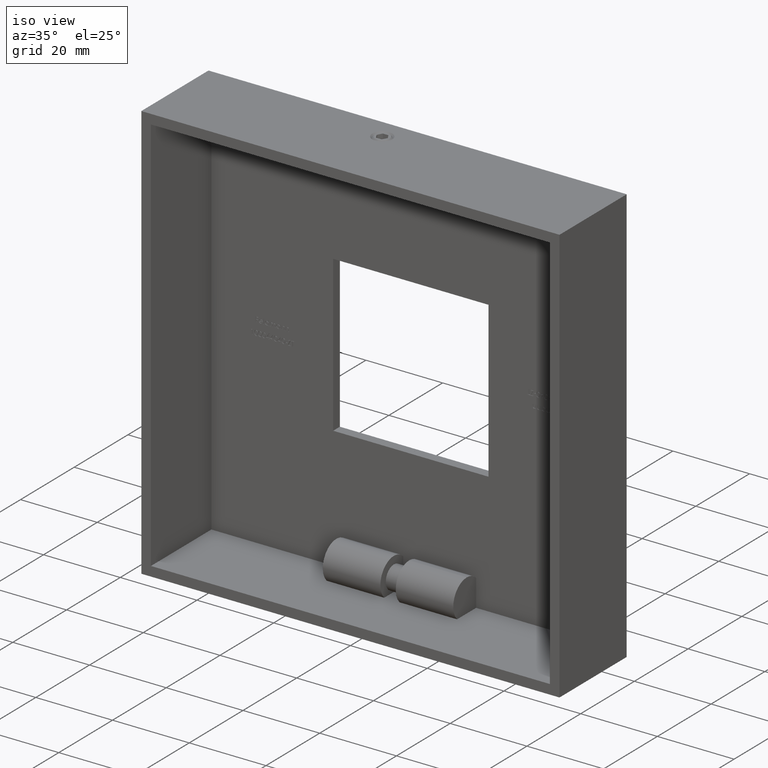
[diagram: clean part render]
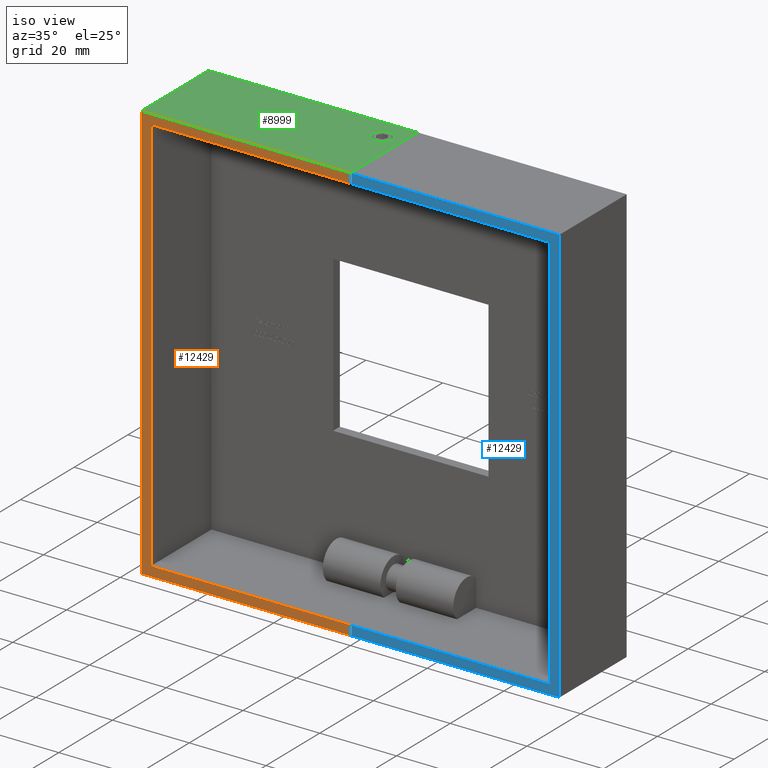
[diagram: same view with three faces highlighted in distinct colors, each labeled with its STEP entity id]
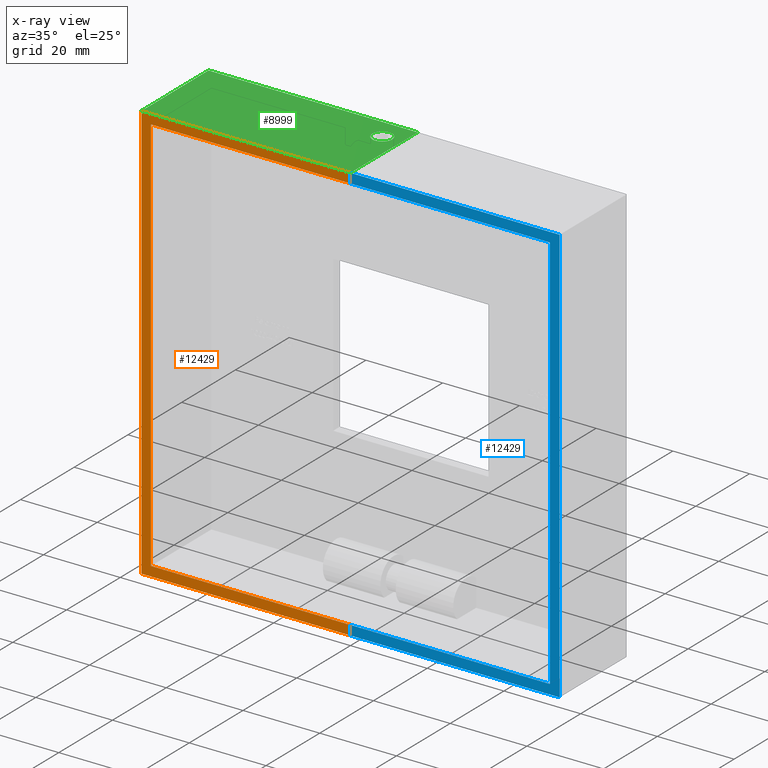
[diagram: x-ray of the same camera — body ghosted, the three highlighted faces saturated]
A machine part, iso view with three faces highlighted in distinct colors.
The next image is the same camera in x-ray (body ghosted, the three faces saturated) — at least one of them is partly hidden behind the body in this view.
Their STEP definitions:

[orange] entity #12429 — the highlighted planar face has unit normal (0, 1, 0).
#82 = VERTEX_POINT ( 'NONE', #2763 ) ;
#467 = EDGE_CURVE ( 'NONE', #2636, #3929, #2175, .T. ) ;
#468 = CARTESIAN_POINT ( 'NONE',  ( -27.24999999999999300, 0.0000000000000000000, 54.49999999999999300 ) ) ;
#1263 = VERTEX_POINT ( 'NONE', #8485 ) ;
#1644 = ORIENTED_EDGE ( 'NONE', *, *, #6239, .F. ) ;
#1744 = LINE ( 'NONE', #5972, #12826 ) ;
#1829 = DIRECTION ( 'NONE',  ( -1.000000000000000000, 0.0000000000000000000, -2.668805347656625700E-016 ) ) ;
#1861 = VECTOR ( 'NONE', #15420, 1000.000000000000000 ) ;
#2093 = ORIENTED_EDGE ( 'NONE', *, *, #15393, .F. ) ;
#2175 = LINE ( 'NONE', #9534, #4462 ) ;
#2636 = VERTEX_POINT ( 'NONE', #3304 ) ;
#2763 = CARTESIAN_POINT ( 'NONE',  ( -24.74999999999999300, 0.0000000000000000000, -52.00000000000000700 ) ) ;
#3304 = CARTESIAN_POINT ( 'NONE',  ( -27.25000000000000700, 0.0000000000000000000, -54.50000000000000000 ) ) ;
#3490 = ORIENTED_EDGE ( 'NONE', *, *, #7276, .F. ) ;
#3929 = VERTEX_POINT ( 'NONE', #468 ) ;
#4234 = LINE ( 'NONE', #10506, #10432 ) ;
#4247 = ORIENTED_EDGE ( 'NONE', *, *, #11982, .F. ) ;
#4462 = VECTOR ( 'NONE', #7160, 1000.000000000000000 ) ;
#5456 = LINE ( 'NONE', #14364, #1861 ) ;
#5972 = CARTESIAN_POINT ( 'NONE',  ( 0.0000000000000000000, 0.0000000000000000000, -52.00000000000000700 ) ) ;
#5986 = LINE ( 'NONE', #8199, #8457 ) ;
#6097 = VERTEX_POINT ( 'NONE', #11626 ) ;
#6239 = EDGE_CURVE ( 'NONE', #1263, #13776, #10716, .T. ) ;
#6682 = ORIENTED_EDGE ( 'NONE', *, *, #15375, .F. ) ;
#6794 = CARTESIAN_POINT ( 'NONE',  ( 27.24999999999999300, 0.0000000000000000000, -54.50000000000000000 ) ) ;
#6818 = CARTESIAN_POINT ( 'NONE',  ( 27.24999999999999300, 0.0000000000000000000, -54.50000000000000000 ) ) ;
#7125 = EDGE_LOOP ( 'NONE', ( #4247, #3490, #6682, #1644, #9738, #2093, #9950, #7428 ) ) ;
#7129 = DIRECTION ( 'NONE',  ( 1.668003342285391600E-016, 0.0000000000000000000, -1.000000000000000000 ) ) ;
#7160 = DIRECTION ( 'NONE',  ( 1.273191542001326800E-016, 0.0000000000000000000, 1.000000000000000000 ) ) ;
#7276 = EDGE_CURVE ( 'NONE', #82, #13096, #1744, .T. ) ;
#7428 = ORIENTED_EDGE ( 'NONE', *, *, #9898, .F. ) ;
#8054 = DIRECTION ( 'NONE',  ( -1.273191542001326800E-016, -0.0000000000000000000, -1.000000000000000000 ) ) ;
#8119 = CARTESIAN_POINT ( 'NONE',  ( -27.25000000000000700, 0.0000000000000000000, -54.50000000000000000 ) ) ;
#8199 = CARTESIAN_POINT ( 'NONE',  ( -24.75000000000000400, -0.0000000000000000000, -4.128308272156344700E-015 ) ) ;
#8457 = VECTOR ( 'NONE', #7129, 1000.000000000000000 ) ;
#8485 = CARTESIAN_POINT ( 'NONE',  ( 27.25000000000000700, 0.0000000000000000000, 51.99999999999999300 ) ) ;
#8556 = DIRECTION ( 'NONE',  ( 0.0000000000000000000, -0.0000000000000000000, 1.000000000000000000 ) ) ;
#9344 = PLANE ( 'NONE',  #13991 ) ;
#9433 = DIRECTION ( 'NONE',  ( 0.0000000000000000000, 1.000000000000000000, 0.0000000000000000000 ) ) ;
#9534 = CARTESIAN_POINT ( 'NONE',  ( -27.25000000000000700, 0.0000000000000000000, -54.50000000000000000 ) ) ;
#9738 = ORIENTED_EDGE ( 'NONE', *, *, #11993, .F. ) ;
#9837 = CARTESIAN_POINT ( 'NONE',  ( -24.75000000000001100, 0.0000000000000000000, 51.99999999999998600 ) ) ;
#9898 = EDGE_CURVE ( 'NONE', #12760, #2636, #11400, .T. ) ;
#9950 = ORIENTED_EDGE ( 'NONE', *, *, #467, .F. ) ;
#10432 = VECTOR ( 'NONE', #11688, 1000.000000000000000 ) ;
#10438 = CARTESIAN_POINT ( 'NONE',  ( 27.24999999999999300, 0.0000000000000000000, -52.00000000000000700 ) ) ;
#10506 = CARTESIAN_POINT ( 'NONE',  ( 27.24999999999999300, 0.0000000000000000000, -54.50000000000000000 ) ) ;
#10716 = LINE ( 'NONE', #13856, #15038 ) ;
#11400 = LINE ( 'NONE', #8119, #12163 ) ;
#11626 = CARTESIAN_POINT ( 'NONE',  ( 27.25000000000000700, 0.0000000000000000000, 54.49999999999999300 ) ) ;
#11688 = DIRECTION ( 'NONE',  ( -1.273191542001326800E-016, -0.0000000000000000000, -1.000000000000000000 ) ) ;
#11982 = EDGE_CURVE ( 'NONE', #13096, #12760, #13234, .T. ) ;
#11993 = EDGE_CURVE ( 'NONE', #6097, #1263, #4234, .T. ) ;
#12163 = VECTOR ( 'NONE', #12988, 1000.000000000000000 ) ;
#12289 = FACE_OUTER_BOUND ( 'NONE', #7125, .T. ) ;
#12429 = ADVANCED_FACE ( 'NONE', ( #12289 ), #9344, .F. ) ;
#12760 = VERTEX_POINT ( 'NONE', #6794 ) ;
#12826 = VECTOR ( 'NONE', #14375, 1000.000000000000000 ) ;
#12988 = DIRECTION ( 'NONE',  ( -1.000000000000000000, -0.0000000000000000000, -0.0000000000000000000 ) ) ;
#13096 = VERTEX_POINT ( 'NONE', #10438 ) ;
#13234 = LINE ( 'NONE', #6818, #14359 ) ;
#13776 = VERTEX_POINT ( 'NONE', #9837 ) ;
#13856 = CARTESIAN_POINT ( 'NONE',  ( -1.387778780781445000E-014, 0.0000000000000000000, 51.99999999999999300 ) ) ;
#13991 = AXIS2_PLACEMENT_3D ( 'NONE', #14244, #9433, #8556 ) ;
#14244 = CARTESIAN_POINT ( 'NONE',  ( 0.0000000000000000000, 0.0000000000000000000, 0.0000000000000000000 ) ) ;
#14359 = VECTOR ( 'NONE', #8054, 1000.000000000000000 ) ;
#14364 = CARTESIAN_POINT ( 'NONE',  ( -27.24999999999999300, 0.0000000000000000000, 54.49999999999999300 ) ) ;
#14375 = DIRECTION ( 'NONE',  ( 1.000000000000000000, 0.0000000000000000000, 0.0000000000000000000 ) ) ;
#15038 = VECTOR ( 'NONE', #1829, 1000.000000000000000 ) ;
#15375 = EDGE_CURVE ( 'NONE', #13776, #82, #5986, .T. ) ;
#15393 = EDGE_CURVE ( 'NONE', #3929, #6097, #5456, .T. ) ;
#15420 = DIRECTION ( 'NONE',  ( 1.000000000000000000, 0.0000000000000000000, 0.0000000000000000000 ) ) ;

[blue] entity #12429 — the highlighted planar face has unit normal (-0, 1, -0).
#82 = VERTEX_POINT ( 'NONE', #2763 ) ;
#467 = EDGE_CURVE ( 'NONE', #2636, #3929, #2175, .T. ) ;
#468 = CARTESIAN_POINT ( 'NONE',  ( -27.24999999999999300, 0.0000000000000000000, 54.49999999999999300 ) ) ;
#1263 = VERTEX_POINT ( 'NONE', #8485 ) ;
#1644 = ORIENTED_EDGE ( 'NONE', *, *, #6239, .F. ) ;
#1744 = LINE ( 'NONE', #5972, #12826 ) ;
#1829 = DIRECTION ( 'NONE',  ( -1.000000000000000000, 0.0000000000000000000, -2.668805347656625700E-016 ) ) ;
#1861 = VECTOR ( 'NONE', #15420, 1000.000000000000000 ) ;
#2093 = ORIENTED_EDGE ( 'NONE', *, *, #15393, .F. ) ;
#2175 = LINE ( 'NONE', #9534, #4462 ) ;
#2636 = VERTEX_POINT ( 'NONE', #3304 ) ;
#2763 = CARTESIAN_POINT ( 'NONE',  ( -24.74999999999999300, 0.0000000000000000000, -52.00000000000000700 ) ) ;
#3304 = CARTESIAN_POINT ( 'NONE',  ( -27.25000000000000700, 0.0000000000000000000, -54.50000000000000000 ) ) ;
#3490 = ORIENTED_EDGE ( 'NONE', *, *, #7276, .F. ) ;
#3929 = VERTEX_POINT ( 'NONE', #468 ) ;
#4234 = LINE ( 'NONE', #10506, #10432 ) ;
#4247 = ORIENTED_EDGE ( 'NONE', *, *, #11982, .F. ) ;
#4462 = VECTOR ( 'NONE', #7160, 1000.000000000000000 ) ;
#5456 = LINE ( 'NONE', #14364, #1861 ) ;
#5972 = CARTESIAN_POINT ( 'NONE',  ( 0.0000000000000000000, 0.0000000000000000000, -52.00000000000000700 ) ) ;
#5986 = LINE ( 'NONE', #8199, #8457 ) ;
#6097 = VERTEX_POINT ( 'NONE', #11626 ) ;
#6239 = EDGE_CURVE ( 'NONE', #1263, #13776, #10716, .T. ) ;
#6682 = ORIENTED_EDGE ( 'NONE', *, *, #15375, .F. ) ;
#6794 = CARTESIAN_POINT ( 'NONE',  ( 27.24999999999999300, 0.0000000000000000000, -54.50000000000000000 ) ) ;
#6818 = CARTESIAN_POINT ( 'NONE',  ( 27.24999999999999300, 0.0000000000000000000, -54.50000000000000000 ) ) ;
#7125 = EDGE_LOOP ( 'NONE', ( #4247, #3490, #6682, #1644, #9738, #2093, #9950, #7428 ) ) ;
#7129 = DIRECTION ( 'NONE',  ( 1.668003342285391600E-016, 0.0000000000000000000, -1.000000000000000000 ) ) ;
#7160 = DIRECTION ( 'NONE',  ( 1.273191542001326800E-016, 0.0000000000000000000, 1.000000000000000000 ) ) ;
#7276 = EDGE_CURVE ( 'NONE', #82, #13096, #1744, .T. ) ;
#7428 = ORIENTED_EDGE ( 'NONE', *, *, #9898, .F. ) ;
#8054 = DIRECTION ( 'NONE',  ( -1.273191542001326800E-016, -0.0000000000000000000, -1.000000000000000000 ) ) ;
#8119 = CARTESIAN_POINT ( 'NONE',  ( -27.25000000000000700, 0.0000000000000000000, -54.50000000000000000 ) ) ;
#8199 = CARTESIAN_POINT ( 'NONE',  ( -24.75000000000000400, -0.0000000000000000000, -4.128308272156344700E-015 ) ) ;
#8457 = VECTOR ( 'NONE', #7129, 1000.000000000000000 ) ;
#8485 = CARTESIAN_POINT ( 'NONE',  ( 27.25000000000000700, 0.0000000000000000000, 51.99999999999999300 ) ) ;
#8556 = DIRECTION ( 'NONE',  ( 0.0000000000000000000, -0.0000000000000000000, 1.000000000000000000 ) ) ;
#9344 = PLANE ( 'NONE',  #13991 ) ;
#9433 = DIRECTION ( 'NONE',  ( 0.0000000000000000000, 1.000000000000000000, 0.0000000000000000000 ) ) ;
#9534 = CARTESIAN_POINT ( 'NONE',  ( -27.25000000000000700, 0.0000000000000000000, -54.50000000000000000 ) ) ;
#9738 = ORIENTED_EDGE ( 'NONE', *, *, #11993, .F. ) ;
#9837 = CARTESIAN_POINT ( 'NONE',  ( -24.75000000000001100, 0.0000000000000000000, 51.99999999999998600 ) ) ;
#9898 = EDGE_CURVE ( 'NONE', #12760, #2636, #11400, .T. ) ;
#9950 = ORIENTED_EDGE ( 'NONE', *, *, #467, .F. ) ;
#10432 = VECTOR ( 'NONE', #11688, 1000.000000000000000 ) ;
#10438 = CARTESIAN_POINT ( 'NONE',  ( 27.24999999999999300, 0.0000000000000000000, -52.00000000000000700 ) ) ;
#10506 = CARTESIAN_POINT ( 'NONE',  ( 27.24999999999999300, 0.0000000000000000000, -54.50000000000000000 ) ) ;
#10716 = LINE ( 'NONE', #13856, #15038 ) ;
#11400 = LINE ( 'NONE', #8119, #12163 ) ;
#11626 = CARTESIAN_POINT ( 'NONE',  ( 27.25000000000000700, 0.0000000000000000000, 54.49999999999999300 ) ) ;
#11688 = DIRECTION ( 'NONE',  ( -1.273191542001326800E-016, -0.0000000000000000000, -1.000000000000000000 ) ) ;
#11982 = EDGE_CURVE ( 'NONE', #13096, #12760, #13234, .T. ) ;
#11993 = EDGE_CURVE ( 'NONE', #6097, #1263, #4234, .T. ) ;
#12163 = VECTOR ( 'NONE', #12988, 1000.000000000000000 ) ;
#12289 = FACE_OUTER_BOUND ( 'NONE', #7125, .T. ) ;
#12429 = ADVANCED_FACE ( 'NONE', ( #12289 ), #9344, .F. ) ;
#12760 = VERTEX_POINT ( 'NONE', #6794 ) ;
#12826 = VECTOR ( 'NONE', #14375, 1000.000000000000000 ) ;
#12988 = DIRECTION ( 'NONE',  ( -1.000000000000000000, -0.0000000000000000000, -0.0000000000000000000 ) ) ;
#13096 = VERTEX_POINT ( 'NONE', #10438 ) ;
#13234 = LINE ( 'NONE', #6818, #14359 ) ;
#13776 = VERTEX_POINT ( 'NONE', #9837 ) ;
#13856 = CARTESIAN_POINT ( 'NONE',  ( -1.387778780781445000E-014, 0.0000000000000000000, 51.99999999999999300 ) ) ;
#13991 = AXIS2_PLACEMENT_3D ( 'NONE', #14244, #9433, #8556 ) ;
#14244 = CARTESIAN_POINT ( 'NONE',  ( 0.0000000000000000000, 0.0000000000000000000, 0.0000000000000000000 ) ) ;
#14359 = VECTOR ( 'NONE', #8054, 1000.000000000000000 ) ;
#14364 = CARTESIAN_POINT ( 'NONE',  ( -27.24999999999999300, 0.0000000000000000000, 54.49999999999999300 ) ) ;
#14375 = DIRECTION ( 'NONE',  ( 1.000000000000000000, 0.0000000000000000000, 0.0000000000000000000 ) ) ;
#15038 = VECTOR ( 'NONE', #1829, 1000.000000000000000 ) ;
#15375 = EDGE_CURVE ( 'NONE', #13776, #82, #5986, .T. ) ;
#15393 = EDGE_CURVE ( 'NONE', #3929, #6097, #5456, .T. ) ;
#15420 = DIRECTION ( 'NONE',  ( 1.000000000000000000, 0.0000000000000000000, 0.0000000000000000000 ) ) ;

[green] entity #8999 — the highlighted planar face has unit normal (0, 0, -1).
#468 = CARTESIAN_POINT ( 'NONE',  ( -27.24999999999999300, 0.0000000000000000000, 54.49999999999999300 ) ) ;
#542 = ORIENTED_EDGE ( 'NONE', *, *, #9289, .T. ) ;
#1561 = VECTOR ( 'NONE', #4387, 1000.000000000000000 ) ;
#1861 = VECTOR ( 'NONE', #15420, 1000.000000000000000 ) ;
#1992 = ORIENTED_EDGE ( 'NONE', *, *, #2485, .T. ) ;
#2037 = DIRECTION ( 'NONE',  ( -0.0000000000000000000, -1.000000000000000000, -0.0000000000000000000 ) ) ;
#2045 = ORIENTED_EDGE ( 'NONE', *, *, #6383, .T. ) ;
#2485 = EDGE_CURVE ( 'NONE', #12612, #3929, #6282, .T. ) ;
#2612 = CARTESIAN_POINT ( 'NONE',  ( 27.25000000000000700, 25.00000000000000000, 54.49999999999999300 ) ) ;
#3053 = CARTESIAN_POINT ( 'NONE',  ( -27.24999999999999300, 25.00000000000000000, 54.49999999999999300 ) ) ;
#3085 = CARTESIAN_POINT ( 'NONE',  ( -27.24999999999999300, 25.00000000000000000, 54.49999999999999300 ) ) ;
#3929 = VERTEX_POINT ( 'NONE', #468 ) ;
#4387 = DIRECTION ( 'NONE',  ( 1.000000000000000000, 0.0000000000000000000, 0.0000000000000000000 ) ) ;
#4741 = DIRECTION ( 'NONE',  ( -1.000000000000000000, 0.0000000000000000000, -0.0000000000000000000 ) ) ;
#4785 = EDGE_LOOP ( 'NONE', ( #2045, #542 ) ) ;
#4818 = AXIS2_PLACEMENT_3D ( 'NONE', #12290, #6304, #7512 ) ;
#5242 = FACE_BOUND ( 'NONE', #4785, .T. ) ;
#5280 = CIRCLE ( 'NONE', #10936, 2.599999999999977400 ) ;
#5456 = LINE ( 'NONE', #14364, #1861 ) ;
#5645 = CARTESIAN_POINT ( 'NONE',  ( 19.65000000000003100, 19.00000000000000400, 54.49999999999999300 ) ) ;
#5723 = LINE ( 'NONE', #3085, #1561 ) ;
#6097 = VERTEX_POINT ( 'NONE', #11626 ) ;
#6190 = LINE ( 'NONE', #6369, #8277 ) ;
#6210 = CARTESIAN_POINT ( 'NONE',  ( 22.25000000000001100, 19.00000000000000400, 54.49999999999999300 ) ) ;
#6282 = LINE ( 'NONE', #3053, #11902 ) ;
#6304 = DIRECTION ( 'NONE',  ( 0.0000000000000000000, 0.0000000000000000000, -1.000000000000000000 ) ) ;
#6369 = CARTESIAN_POINT ( 'NONE',  ( 27.25000000000000700, 25.00000000000000000, 54.49999999999999300 ) ) ;
#6383 = EDGE_CURVE ( 'NONE', #14106, #7092, #5280, .T. ) ;
#6605 = ORIENTED_EDGE ( 'NONE', *, *, #12357, .F. ) ;
#6669 = EDGE_CURVE ( 'NONE', #8809, #6097, #6190, .T. ) ;
#7092 = VERTEX_POINT ( 'NONE', #5645 ) ;
#7512 = DIRECTION ( 'NONE',  ( -1.000000000000000000, 0.0000000000000000000, 0.0000000000000000000 ) ) ;
#7968 = ORIENTED_EDGE ( 'NONE', *, *, #15393, .T. ) ;
#8277 = VECTOR ( 'NONE', #11120, 1000.000000000000000 ) ;
#8437 = FACE_OUTER_BOUND ( 'NONE', #10430, .T. ) ;
#8809 = VERTEX_POINT ( 'NONE', #2612 ) ;
#8999 = ADVANCED_FACE ( 'NONE', ( #5242, #8437 ), #10735, .F. ) ;
#9289 = EDGE_CURVE ( 'NONE', #7092, #14106, #13685, .T. ) ;
#10170 = CARTESIAN_POINT ( 'NONE',  ( 24.84999999999998700, 19.00000000000000400, 54.49999999999999300 ) ) ;
#10430 = EDGE_LOOP ( 'NONE', ( #7968, #12889, #6605, #1992 ) ) ;
#10735 = PLANE ( 'NONE',  #11756 ) ;
#10936 = AXIS2_PLACEMENT_3D ( 'NONE', #6210, #13402, #12365 ) ;
#11120 = DIRECTION ( 'NONE',  ( -0.0000000000000000000, -1.000000000000000000, -0.0000000000000000000 ) ) ;
#11343 = CARTESIAN_POINT ( 'NONE',  ( -27.24999999999999300, 25.00000000000000000, 54.49999999999999300 ) ) ;
#11626 = CARTESIAN_POINT ( 'NONE',  ( 27.25000000000000700, 0.0000000000000000000, 54.49999999999999300 ) ) ;
#11756 = AXIS2_PLACEMENT_3D ( 'NONE', #11923, #14405, #4741 ) ;
#11902 = VECTOR ( 'NONE', #2037, 1000.000000000000000 ) ;
#11923 = CARTESIAN_POINT ( 'NONE',  ( -27.24999999999999300, 25.00000000000000000, 54.49999999999999300 ) ) ;
#12290 = CARTESIAN_POINT ( 'NONE',  ( 22.25000000000001100, 19.00000000000000400, 54.49999999999999300 ) ) ;
#12357 = EDGE_CURVE ( 'NONE', #12612, #8809, #5723, .T. ) ;
#12365 = DIRECTION ( 'NONE',  ( -1.000000000000000000, 0.0000000000000000000, 0.0000000000000000000 ) ) ;
#12612 = VERTEX_POINT ( 'NONE', #11343 ) ;
#12889 = ORIENTED_EDGE ( 'NONE', *, *, #6669, .F. ) ;
#13402 = DIRECTION ( 'NONE',  ( 0.0000000000000000000, 0.0000000000000000000, -1.000000000000000000 ) ) ;
#13685 = CIRCLE ( 'NONE', #4818, 2.599999999999977400 ) ;
#14106 = VERTEX_POINT ( 'NONE', #10170 ) ;
#14364 = CARTESIAN_POINT ( 'NONE',  ( -27.24999999999999300, 0.0000000000000000000, 54.49999999999999300 ) ) ;
#14405 = DIRECTION ( 'NONE',  ( 0.0000000000000000000, 0.0000000000000000000, -1.000000000000000000 ) ) ;
#15393 = EDGE_CURVE ( 'NONE', #3929, #6097, #5456, .T. ) ;
#15420 = DIRECTION ( 'NONE',  ( 1.000000000000000000, 0.0000000000000000000, 0.0000000000000000000 ) ) ;